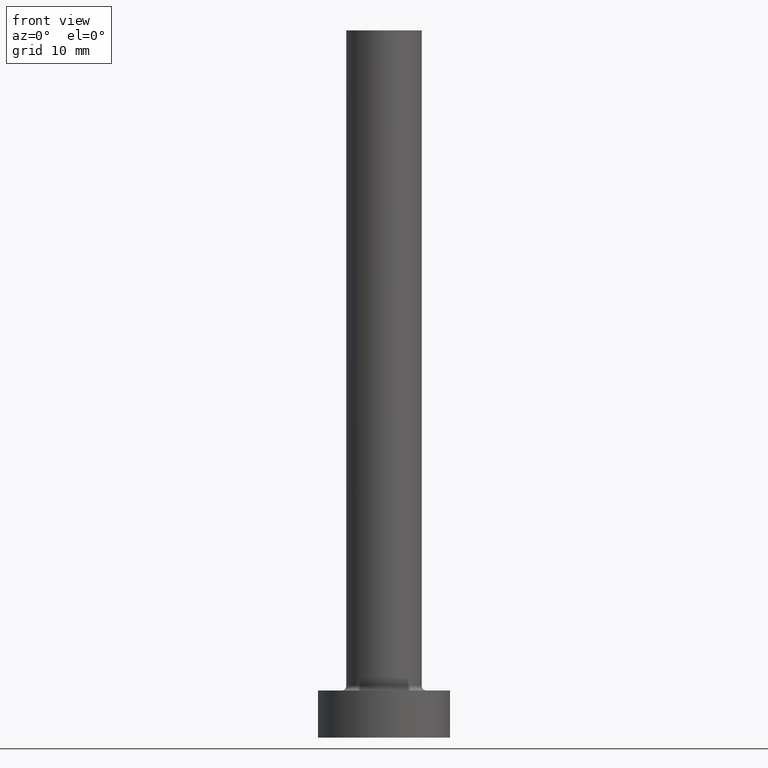
[diagram: clean part render]
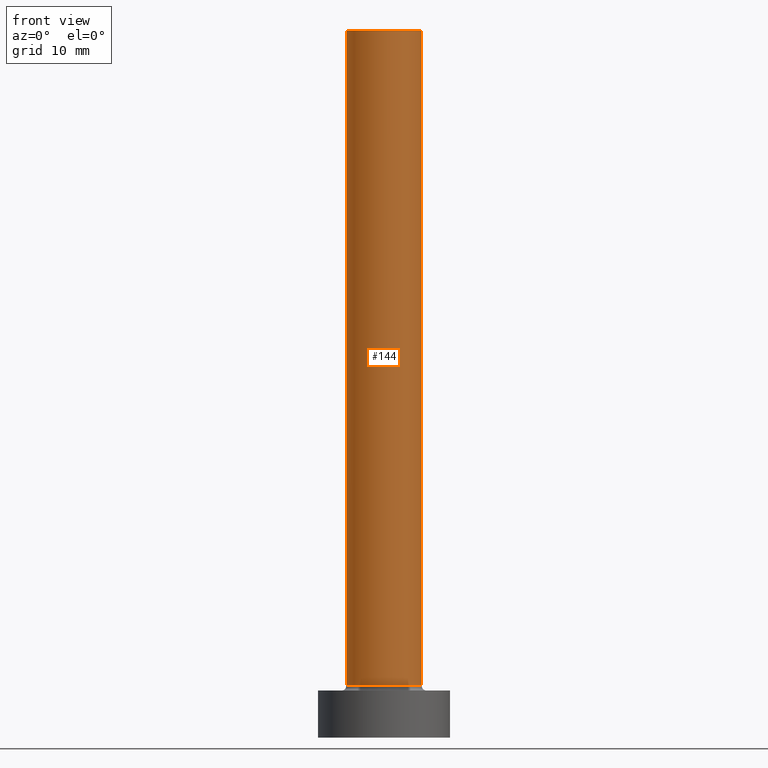
[diagram: same view with one face highlighted and labeled with its STEP entity id]
A machine part, front view. The second image highlights one B-rep face of the part: STEP entity #144.
In plain terms, the highlighted cylindrical surface (partial cylindrical patch) has radius 4 mm, axis along (-0, -0, -1).
Its self-contained STEP definition (entity closure, byte-faithful):
#3 = DIRECTION ( 'NONE',  ( -0.000000000000000000, -0.000000000000000000, -1.000000000000000000 ) ) ;
#4 = ORIENTED_EDGE ( 'NONE', *, *, #248, .F. ) ;
#12 = DIRECTION ( 'NONE',  ( -1.000000000000000000, 0.000000000000000000, 0.000000000000000000 ) ) ;
#33 = ORIENTED_EDGE ( 'NONE', *, *, #297, .F. ) ;
#38 = CYLINDRICAL_SURFACE ( 'NONE', #77, 4.000000000000000000 ) ;
#77 = AXIS2_PLACEMENT_3D ( 'NONE', #110, #184, #12 ) ;
#85 = AXIS2_PLACEMENT_3D ( 'NONE', #384, #280, #125 ) ;
#104 = DIRECTION ( 'NONE',  ( 0.000000000000000000, 0.000000000000000000, 1.000000000000000000 ) ) ;
#110 = CARTESIAN_POINT ( 'NONE',  ( 0.000000000000000000, 0.000000000000000000, 75.00000000000001421 ) ) ;
#115 = CARTESIAN_POINT ( 'NONE',  ( 4.000000000000000000, 4.898587196589412829E-16, 75.00000000000001421 ) ) ;
#120 = DIRECTION ( 'NONE',  ( -0.000000000000000000, -0.000000000000000000, -1.000000000000000000 ) ) ;
#123 = CIRCLE ( 'NONE', #85, 4.000000000000000000 ) ;
#125 = DIRECTION ( 'NONE',  ( 1.000000000000000000, 0.000000000000000000, 0.000000000000000000 ) ) ;
#144 = ADVANCED_FACE ( 'NONE', ( #400 ), #38, .T. ) ;
#149 = CARTESIAN_POINT ( 'NONE',  ( 0.000000000000000000, 0.000000000000000000, 75.00000000000001421 ) ) ;
#166 = VECTOR ( 'NONE', #120, 1000.000000000000000 ) ;
#181 = CARTESIAN_POINT ( 'NONE',  ( -4.000000000000000000, 0.000000000000000000, 75.00000000000001421 ) ) ;
#184 = DIRECTION ( 'NONE',  ( -0.000000000000000000, -0.000000000000000000, -1.000000000000000000 ) ) ;
#207 = CARTESIAN_POINT ( 'NONE',  ( 4.000000000000000000, 4.898587196589412829E-16, 5.500000000000005329 ) ) ;
#208 = VERTEX_POINT ( 'NONE', #265 ) ;
#225 = LINE ( 'NONE', #181, #435 ) ;
#241 = CARTESIAN_POINT ( 'NONE',  ( -4.000000000000000000, 0.000000000000000000, 5.500000000000005329 ) ) ;
#248 = EDGE_CURVE ( 'NONE', #208, #375, #321, .T. ) ;
#265 = CARTESIAN_POINT ( 'NONE',  ( -4.000000000000000000, 0.000000000000000000, 75.00000000000001421 ) ) ;
#269 = EDGE_CURVE ( 'NONE', #208, #314, #225, .T. ) ;
#280 = DIRECTION ( 'NONE',  ( 0.000000000000000000, 0.000000000000000000, 1.000000000000000000 ) ) ;
#297 = EDGE_CURVE ( 'NONE', #375, #378, #304, .T. ) ;
#302 = DIRECTION ( 'NONE',  ( 1.000000000000000000, 0.000000000000000000, 0.000000000000000000 ) ) ;
#304 = LINE ( 'NONE', #115, #166 ) ;
#314 = VERTEX_POINT ( 'NONE', #241 ) ;
#321 = CIRCLE ( 'NONE', #388, 4.000000000000000000 ) ;
#340 = EDGE_LOOP ( 'NONE', ( #33, #4, #444, #398 ) ) ;
#372 = EDGE_CURVE ( 'NONE', #314, #378, #123, .T. ) ;
#375 = VERTEX_POINT ( 'NONE', #419 ) ;
#378 = VERTEX_POINT ( 'NONE', #207 ) ;
#384 = CARTESIAN_POINT ( 'NONE',  ( 0.000000000000000000, 0.000000000000000000, 5.500000000000005329 ) ) ;
#388 = AXIS2_PLACEMENT_3D ( 'NONE', #149, #104, #302 ) ;
#398 = ORIENTED_EDGE ( 'NONE', *, *, #372, .T. ) ;
#400 = FACE_OUTER_BOUND ( 'NONE', #340, .T. ) ;
#419 = CARTESIAN_POINT ( 'NONE',  ( 4.000000000000000000, 4.898587196589412829E-16, 75.00000000000001421 ) ) ;
#435 = VECTOR ( 'NONE', #3, 1000.000000000000000 ) ;
#444 = ORIENTED_EDGE ( 'NONE', *, *, #269, .T. ) ;